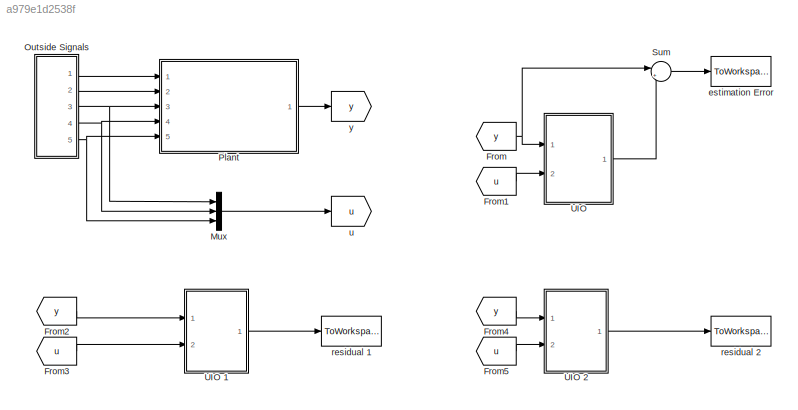
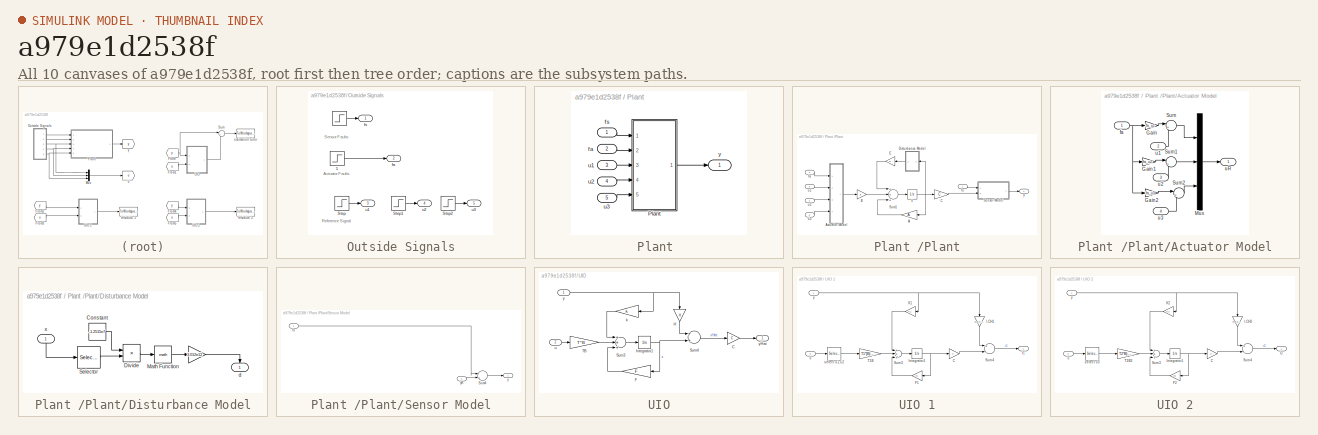
[diagram: thumbnail index - all 10 canvases of the model, root first then tree order]
MODEL slx_a979e1d2538f
KIND model
BLOCK [From] From
  GotoTag = y
BLOCK [From] From1
  GotoTag = u
BLOCK [From] From2
  GotoTag = y
BLOCK [From] From3
  GotoTag = u
BLOCK [From] From4
  GotoTag = y
BLOCK [From] From5
  GotoTag = u
BLOCK [Mux] Mux
  DisplayOption = bar
  Inputs = 3
  Ports = [3, 1]
BLOCK [SubSystem] Outside Signals
  Ports = [0, 5]
  RequestExecContextInheritance = off
BLOCK [Step] Outside Signals/  
  After = fsVal
  SampleTime = 0
  Time = fsTime
BLOCK [Step] Outside Signals/  1
  After = faVal
  SampleTime = 0
  Time = faTime
BLOCK [Step] Outside Signals/Step
  After = u1Val
  SampleTime = 0
  Time = 0
BLOCK [Step] Outside Signals/Step1
  After = u2Val
  SampleTime = 0
  Time = 0
BLOCK [Step] Outside Signals/Step2
  After = u3Val
  SampleTime = 0
  Time = 0
BLOCK [Outport] Outside Signals/fa
  IconDisplay = Port number
  Port = 2
BLOCK [Outport] Outside Signals/fs
  IconDisplay = Port number
BLOCK [Outport] Outside Signals/u1 
  IconDisplay = Port number
  Port = 3
BLOCK [Outport] Outside Signals/u2
  IconDisplay = Port number
  Port = 4
BLOCK [Outport] Outside Signals/u3
  IconDisplay = Port number
  Port = 5
BLOCK [SubSystem] Plant 
  Ports = [5, 1]
  RequestExecContextInheritance = off
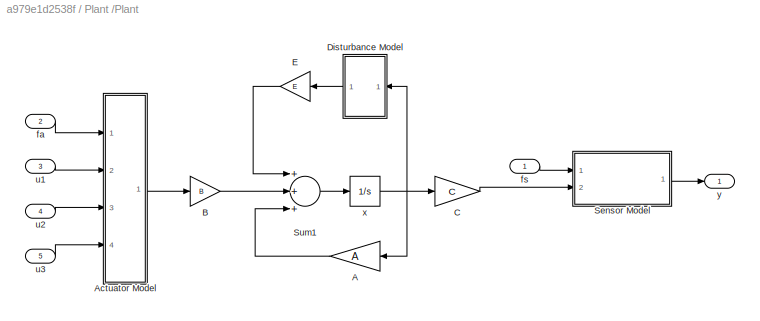
BLOCK [SubSystem] Plant /Plant
  Ports = [5, 1]
  RequestExecContextInheritance = off
BLOCK [Gain] Plant /Plant/A
  Gain = A
  Multiplication = Matrix(K*u)
  OutDataTypeStr = Inherit: Inherit via internal rule
  ParamDataTypeStr = Inherit: Inherit via internal rule
  SaturateOnIntegerOverflow = off
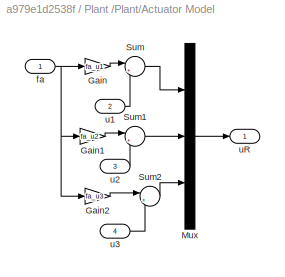
BLOCK [SubSystem] Plant /Plant/Actuator Model
  Ports = [4, 1]
  RequestExecContextInheritance = off
BLOCK [Gain] Plant /Plant/Actuator Model/Gain
  Gain = fa_u1
  OutDataTypeStr = Inherit: Inherit via internal rule
  ParamDataTypeStr = Inherit: Inherit via internal rule
  SaturateOnIntegerOverflow = off
BLOCK [Gain] Plant /Plant/Actuator Model/Gain1
  Gain = fa_u2
  OutDataTypeStr = Inherit: Inherit via internal rule
  ParamDataTypeStr = Inherit: Inherit via internal rule
  SaturateOnIntegerOverflow = off
BLOCK [Gain] Plant /Plant/Actuator Model/Gain2
  Gain = fa_u3
  OutDataTypeStr = Inherit: Inherit via internal rule
  ParamDataTypeStr = Inherit: Inherit via internal rule
  SaturateOnIntegerOverflow = off
BLOCK [Mux] Plant /Plant/Actuator Model/Mux
  DisplayOption = bar
  Inputs = 3
  Ports = [3, 1]
BLOCK [Sum] Plant /Plant/Actuator Model/Sum
  IconShape = round
  InputSameDT = off
  Inputs = |++
  OutDataTypeStr = Inherit: Inherit via internal rule
  Ports = [2, 1]
  SaturateOnIntegerOverflow = off
BLOCK [Sum] Plant /Plant/Actuator Model/Sum1
  IconShape = round
  InputSameDT = off
  Inputs = |++
  OutDataTypeStr = Inherit: Inherit via internal rule
  Ports = [2, 1]
  SaturateOnIntegerOverflow = off
BLOCK [Sum] Plant /Plant/Actuator Model/Sum2
  IconShape = round
  InputSameDT = off
  Inputs = |++
  OutDataTypeStr = Inherit: Inherit via internal rule
  Ports = [2, 1]
  SaturateOnIntegerOverflow = off
BLOCK [Inport] Plant /Plant/Actuator Model/fa
  IconDisplay = Port number
BLOCK [Inport] Plant /Plant/Actuator Model/u1
  IconDisplay = Port number
  Port = 2
BLOCK [Inport] Plant /Plant/Actuator Model/u2
  IconDisplay = Port number
  Port = 3
BLOCK [Inport] Plant /Plant/Actuator Model/u3
  IconDisplay = Port number
  Port = 4
BLOCK [Outport] Plant /Plant/Actuator Model/uR
  IconDisplay = Port number
BLOCK [Gain] Plant /Plant/B
  Gain = B
  Multiplication = Matrix(K*u) (u vector)
  OutDataTypeStr = Inherit: Inherit via internal rule
  ParamDataTypeStr = Inherit: Inherit via internal rule
  SaturateOnIntegerOverflow = off
BLOCK [Gain] Plant /Plant/C
  Gain = C
  Multiplication = Matrix(K*u)
  OutDataTypeStr = Inherit: Inherit via internal rule
  ParamDataTypeStr = Inherit: Inherit via internal rule
  SaturateOnIntegerOverflow = off
BLOCK [SubSystem] Plant /Plant/Disturbance Model
  Ports = [1, 1]
  RequestExecContextInheritance = off
BLOCK [Gain] Plant /Plant/Disturbance Model/  
  Gain = 3.012e12
  Multiplication = Matrix(K*u)
  OutDataTypeStr = Inherit: Inherit via internal rule
  ParamDataTypeStr = Inherit: Inherit via internal rule
  SaturateOnIntegerOverflow = off
BLOCK [Constant] Plant /Plant/Disturbance Model/Constant
  Value = -1.2515e7
BLOCK [Product] Plant /Plant/Disturbance Model/Divide
  InputSameDT = off
  Inputs = */
  OutDataTypeStr = Inherit: Inherit via internal rule
  Ports = [2, 1]
  RndMeth = Floor
  SaturateOnIntegerOverflow = off
BLOCK [Math] Plant /Plant/Disturbance Model/Math Function
  Ports = [1, 1]
BLOCK [Selector] Plant /Plant/Disturbance Model/Selector
  Indices = 2
  InputPortWidth = 4
  Ports = [1, 1]
BLOCK [Outport] Plant /Plant/Disturbance Model/d
  IconDisplay = Port number
BLOCK [Inport] Plant /Plant/Disturbance Model/x
  IconDisplay = Port number
BLOCK [Gain] Plant /Plant/E
  Gain = E
  Multiplication = Matrix(K*u)
  OutDataTypeStr = Inherit: Inherit via internal rule
  ParamDataTypeStr = Inherit: Inherit via internal rule
  SaturateOnIntegerOverflow = off
BLOCK [SubSystem] Plant /Plant/Sensor Model
  Ports = [2, 1]
  RequestExecContextInheritance = off
BLOCK [Sum] Plant /Plant/Sensor Model/Sum4
  InputSameDT = off
  Inputs = |++
  OutDataTypeStr = Inherit: Inherit via internal rule
  Ports = [2, 1]
  SaturateOnIntegerOverflow = off
BLOCK [Inport] Plant /Plant/Sensor Model/fs
  IconDisplay = Port number
BLOCK [Outport] Plant /Plant/Sensor Model/y
  IconDisplay = Port number
BLOCK [Inport] Plant /Plant/Sensor Model/yR
  IconDisplay = Port number
  Port = 2
BLOCK [Sum] Plant /Plant/Sum1
  InputSameDT = off
  Inputs = +++
  OutDataTypeStr = Inherit: Inherit via internal rule
  Ports = [3, 1]
  SaturateOnIntegerOverflow = off
BLOCK [Inport] Plant /Plant/fa
  IconDisplay = Port number
  Port = 2
BLOCK [Inport] Plant /Plant/fs
  IconDisplay = Port number
BLOCK [Inport] Plant /Plant/u1
  IconDisplay = Port number
  Port = 3
BLOCK [Inport] Plant /Plant/u2
  IconDisplay = Port number
  Port = 4
BLOCK [Inport] Plant /Plant/u3
  IconDisplay = Port number
  Port = 5
BLOCK [Integrator] Plant /Plant/x
  InitialCondition = [x1_0;x2_0;x3_0;x4_0]
  Ports = [1, 1]
BLOCK [Outport] Plant /Plant/y
  IconDisplay = Port number
BLOCK [Inport] Plant /fa
  IconDisplay = Port number
  Port = 2
BLOCK [Inport] Plant /fs
  IconDisplay = Port number
BLOCK [Inport] Plant /u1
  IconDisplay = Port number
  Port = 3
BLOCK [Inport] Plant /u2
  IconDisplay = Port number
  Port = 4
BLOCK [Inport] Plant /u3
  IconDisplay = Port number
  Port = 5
BLOCK [Outport] Plant /y
  IconDisplay = Port number
BLOCK [Sum] Sum
  IconShape = round
  InputSameDT = off
  Inputs = |+-
  OutDataTypeStr = Inherit: Inherit via internal rule
  Ports = [2, 1]
  SaturateOnIntegerOverflow = off
BLOCK [SubSystem] UIO
  Ports = [2, 1]
  RequestExecContextInheritance = off
BLOCK [SubSystem] UIO 1
  Ports = [2, 1]
  RequestExecContextInheritance = off
BLOCK [Gain] UIO 1/C
  Gain = C
  Multiplication = Matrix(K*u)
  OutDataTypeStr = Inherit: Inherit via internal rule
  ParamDataTypeStr = Inherit: Inherit via internal rule
  SaturateOnIntegerOverflow = off
BLOCK [Gain] UIO 1/F1
  Gain = F1
  Multiplication = Matrix(K*u)
  OutDataTypeStr = Inherit: Inherit via internal rule
  ParamDataTypeStr = Inherit: Inherit via internal rule
  SaturateOnIntegerOverflow = off
BLOCK [Gain] UIO 1/I-CH1
  Gain = eye(4)-C*H1
  Multiplication = Matrix(K*u)
  OutDataTypeStr = Inherit: Inherit via internal rule
  ParamDataTypeStr = Inherit: Inherit via internal rule
  SaturateOnIntegerOverflow = off
BLOCK [Integrator] UIO 1/Integrator1
  Ports = [1, 1]
BLOCK [Gain] UIO 1/K1
  Gain = K1
  Multiplication = Matrix(K*u)
  OutDataTypeStr = Inherit: Inherit via internal rule
  ParamDataTypeStr = Inherit: Inherit via internal rule
  SaturateOnIntegerOverflow = off
BLOCK [Sum] UIO 1/Sum3
  InputSameDT = off
  Inputs = +++
  OutDataTypeStr = Inherit: Inherit via internal rule
  Ports = [3, 1]
  SaturateOnIntegerOverflow = off
BLOCK [Sum] UIO 1/Sum4
  InputSameDT = off
  Inputs = +-
  OutDataTypeStr = Inherit: Inherit via internal rule
  Ports = [2, 1]
  SaturateOnIntegerOverflow = off
BLOCK [Gain] UIO 1/T1B
  Gain = T1*[B(:,1) B(:,2)]
  Multiplication = Matrix(K*u)
  OutDataTypeStr = Inherit: Inherit via internal rule
  ParamDataTypeStr = Inherit: Inherit via internal rule
  SaturateOnIntegerOverflow = off
BLOCK [Outport] UIO 1/r1
  IconDisplay = Port number
BLOCK [Selector] UIO 1/select u1,u2
  Indices = [1 2]
  InputPortWidth = 3
  Ports = [1, 1]
BLOCK [Inport] UIO 1/u
  IconDisplay = Port number
  Port = 2
BLOCK [Inport] UIO 1/y
  IconDisplay = Port number
BLOCK [SubSystem] UIO 2
  Ports = [2, 1]
  RequestExecContextInheritance = off
BLOCK [Gain] UIO 2/C
  Gain = C
  Multiplication = Matrix(K*u)
  OutDataTypeStr = Inherit: Inherit via internal rule
  ParamDataTypeStr = Inherit: Inherit via internal rule
  SaturateOnIntegerOverflow = off
BLOCK [Gain] UIO 2/F2
  Gain = F2
  Multiplication = Matrix(K*u)
  OutDataTypeStr = Inherit: Inherit via internal rule
  ParamDataTypeStr = Inherit: Inherit via internal rule
  SaturateOnIntegerOverflow = off
BLOCK [Gain] UIO 2/I-CH2
  Gain = eye(4)-C*H2
  Multiplication = Matrix(K*u)
  OutDataTypeStr = Inherit: Inherit via internal rule
  ParamDataTypeStr = Inherit: Inherit via internal rule
  SaturateOnIntegerOverflow = off
BLOCK [Integrator] UIO 2/Integrator1
  Ports = [1, 1]
BLOCK [Gain] UIO 2/K2
  Gain = K2
  Multiplication = Matrix(K*u)
  OutDataTypeStr = Inherit: Inherit via internal rule
  ParamDataTypeStr = Inherit: Inherit via internal rule
  SaturateOnIntegerOverflow = off
BLOCK [Sum] UIO 2/Sum3
  InputSameDT = off
  Inputs = +++
  OutDataTypeStr = Inherit: Inherit via internal rule
  Ports = [3, 1]
  SaturateOnIntegerOverflow = off
BLOCK [Sum] UIO 2/Sum4
  InputSameDT = off
  Inputs = +-
  OutDataTypeStr = Inherit: Inherit via internal rule
  Ports = [2, 1]
  SaturateOnIntegerOverflow = off
BLOCK [Gain] UIO 2/T2B3
  Gain = T2*B(:,3)
  Multiplication = Matrix(K*u)
  OutDataTypeStr = Inherit: Inherit via internal rule
  ParamDataTypeStr = Inherit: Inherit via internal rule
  SaturateOnIntegerOverflow = off
BLOCK [Outport] UIO 2/r2
  IconDisplay = Port number
BLOCK [Selector] UIO 2/select u3
  Indices = 3
  InputPortWidth = 3
  Ports = [1, 1]
BLOCK [Inport] UIO 2/u
  IconDisplay = Port number
  Port = 2
BLOCK [Inport] UIO 2/y
  IconDisplay = Port number
BLOCK [Gain] UIO/C
  Gain = C
  Multiplication = Matrix(K*u)
  OutDataTypeStr = Inherit: Inherit via internal rule
  ParamDataTypeStr = Inherit: Inherit via internal rule
  SaturateOnIntegerOverflow = off
BLOCK [Gain] UIO/F
  Gain = F
  Multiplication = Matrix(K*u)
  OutDataTypeStr = Inherit: Inherit via internal rule
  ParamDataTypeStr = Inherit: Inherit via internal rule
  SaturateOnIntegerOverflow = off
BLOCK [Gain] UIO/H
  Gain = H
  Multiplication = Matrix(K*u)
  OutDataTypeStr = Inherit: Inherit via internal rule
  ParamDataTypeStr = Inherit: Inherit via internal rule
  SaturateOnIntegerOverflow = off
BLOCK [Integrator] UIO/Integrator1
  Ports = [1, 1]
BLOCK [Sum] UIO/Sum3
  InputSameDT = off
  Inputs = +++
  OutDataTypeStr = Inherit: Inherit via internal rule
  Ports = [3, 1]
  SaturateOnIntegerOverflow = off
BLOCK [Sum] UIO/Sum4
  InputSameDT = off
  OutDataTypeStr = Inherit: Inherit via internal rule
  Ports = [2, 1]
  SaturateOnIntegerOverflow = off
BLOCK [Gain] UIO/TB
  Gain = T*B
  Multiplication = Matrix(K*u)
  OutDataTypeStr = Inherit: Inherit via internal rule
  ParamDataTypeStr = Inherit: Inherit via internal rule
  SaturateOnIntegerOverflow = off
BLOCK [Gain] UIO/k
  Gain = k
  Multiplication = Matrix(K*u)
  OutDataTypeStr = Inherit: Inherit via internal rule
  ParamDataTypeStr = Inherit: Inherit via internal rule
  SaturateOnIntegerOverflow = off
BLOCK [Inport] UIO/u
  IconDisplay = Port number
  Port = 2
BLOCK [Inport] UIO/y
  IconDisplay = Port number
BLOCK [Outport] UIO/yHat 
  IconDisplay = Port number
BLOCK [ToWorkspace] estimation Error
  FixptAsFi = on
  MaxDataPoints = inf
  Ports = [1]
  SampleTime = -1
  Save2DSignal = 3-D array (concatenate along third dimension)
  VariableName = estErrUIO
BLOCK [ToWorkspace] residual 1
  FixptAsFi = on
  MaxDataPoints = inf
  Ports = [1]
  SampleTime = -1
  Save2DSignal = 3-D array (concatenate along third dimension)
  VariableName = r1
BLOCK [ToWorkspace] residual 2
  FixptAsFi = on
  MaxDataPoints = inf
  Ports = [1]
  SampleTime = -1
  Save2DSignal = 3-D array (concatenate along third dimension)
  VariableName = r2
BLOCK [Goto] u
  GotoTag = u
BLOCK [Goto] y
  GotoTag = y
ANNOTATION Outside Signals: Actuator Faults
ANNOTATION Outside Signals: Reference Signal
ANNOTATION Outside Signals: Sensor Faults
LINE From1:1 -> UIO:2
LINE From2:1 -> UIO 1:1
LINE From3:1 -> UIO 1:2
LINE From4:1 -> UIO 2:1
LINE From5:1 -> UIO 2:2
NET From:1 -> Sum:1, UIO:1
LINE Mux:1 -> u:1
LINE Outside Signals/  1:1 -> Outside Signals/fa:1
LINE Outside Signals/  :1 -> Outside Signals/fs:1
LINE Outside Signals/Step1:1 -> Outside Signals/u2:1
LINE Outside Signals/Step2:1 -> Outside Signals/u3:1
LINE Outside Signals/Step:1 -> Outside Signals/u1 :1
LINE Outside Signals:1 -> Plant :1
LINE Outside Signals:2 -> Plant :2
NET Outside Signals:3 -> Mux:1, Plant :3
NET Outside Signals:4 -> Mux:2, Plant :4
NET Outside Signals:5 -> Mux:3, Plant :5
LINE Plant /Plant/A:1 -> Plant /Plant/Sum1:3
LINE Plant /Plant/Actuator Model/Gain1:1 -> Plant /Plant/Actuator Model/Sum1:1
LINE Plant /Plant/Actuator Model/Gain2:1 -> Plant /Plant/Actuator Model/Sum2:1
LINE Plant /Plant/Actuator Model/Gain:1 -> Plant /Plant/Actuator Model/Sum:1
LINE Plant /Plant/Actuator Model/Mux:1 -> Plant /Plant/Actuator Model/uR:1
LINE Plant /Plant/Actuator Model/Sum1:1 -> Plant /Plant/Actuator Model/Mux:2
LINE Plant /Plant/Actuator Model/Sum2:1 -> Plant /Plant/Actuator Model/Mux:3
LINE Plant /Plant/Actuator Model/Sum:1 -> Plant /Plant/Actuator Model/Mux:1
NET Plant /Plant/Actuator Model/fa:1 -> Plant /Plant/Actuator Model/Gain1:1, Plant /Plant/Actuator Model/Gain2:1, Plant /Plant/Actuator Model/Gain:1
LINE Plant /Plant/Actuator Model/u1:1 -> Plant /Plant/Actuator Model/Sum:2
LINE Plant /Plant/Actuator Model/u2:1 -> Plant /Plant/Actuator Model/Sum1:2
LINE Plant /Plant/Actuator Model/u3:1 -> Plant /Plant/Actuator Model/Sum2:2
LINE Plant /Plant/Actuator Model:1 -> Plant /Plant/B:1
LINE Plant /Plant/B:1 -> Plant /Plant/Sum1:2
LINE Plant /Plant/C:1 -> Plant /Plant/Sensor Model:2
LINE Plant /Plant/Disturbance Model/  :1 -> Plant /Plant/Disturbance Model/d:1
LINE Plant /Plant/Disturbance Model/Constant:1 -> Plant /Plant/Disturbance Model/Divide:1
LINE Plant /Plant/Disturbance Model/Divide:1 -> Plant /Plant/Disturbance Model/Math Function:1
LINE Plant /Plant/Disturbance Model/Math Function:1 -> Plant /Plant/Disturbance Model/  :1
LINE Plant /Plant/Disturbance Model/Selector:1 -> Plant /Plant/Disturbance Model/Divide:2
LINE Plant /Plant/Disturbance Model/x:1 -> Plant /Plant/Disturbance Model/Selector:1
LINE Plant /Plant/Disturbance Model:1 -> Plant /Plant/E:1
LINE Plant /Plant/E:1 -> Plant /Plant/Sum1:1
LINE Plant /Plant/Sensor Model/Sum4:1 -> Plant /Plant/Sensor Model/y:1
LINE Plant /Plant/Sensor Model/fs:1 -> Plant /Plant/Sensor Model/Sum4:1
LINE Plant /Plant/Sensor Model/yR:1 -> Plant /Plant/Sensor Model/Sum4:2
LINE Plant /Plant/Sensor Model:1 -> Plant /Plant/y:1
LINE Plant /Plant/Sum1:1 -> Plant /Plant/x:1
LINE Plant /Plant/fa:1 -> Plant /Plant/Actuator Model:1
LINE Plant /Plant/fs:1 -> Plant /Plant/Sensor Model:1
LINE Plant /Plant/u1:1 -> Plant /Plant/Actuator Model:2
LINE Plant /Plant/u2:1 -> Plant /Plant/Actuator Model:3
LINE Plant /Plant/u3:1 -> Plant /Plant/Actuator Model:4
NET Plant /Plant/x:1 -> Plant /Plant/A:1, Plant /Plant/C:1, Plant /Plant/Disturbance Model:1
LINE Plant /Plant:1 -> Plant /y:1
LINE Plant /fa:1 -> Plant /Plant:2
LINE Plant /fs:1 -> Plant /Plant:1
LINE Plant /u1:1 -> Plant /Plant:3
LINE Plant /u2:1 -> Plant /Plant:4
LINE Plant /u3:1 -> Plant /Plant:5
LINE Plant :1 -> y:1
LINE Sum:1 -> estimation Error:1
LINE UIO 1/C:1 -> UIO 1/Sum4:2
LINE UIO 1/F1:1 -> UIO 1/Sum3:3
LINE UIO 1/I-CH1:1 -> UIO 1/Sum4:1
NET UIO 1/Integrator1:1 -> UIO 1/C:1, UIO 1/F1:1
LINE UIO 1/K1:1 -> UIO 1/Sum3:1
LINE UIO 1/Sum3:1 -> UIO 1/Integrator1:1
LINE UIO 1/Sum4:1 -> UIO 1/r1:1
LINE UIO 1/T1B:1 -> UIO 1/Sum3:2
LINE UIO 1/select u1,u2:1 -> UIO 1/T1B:1
LINE UIO 1/u:1 -> UIO 1/select u1,u2:1
NET UIO 1/y:1 -> UIO 1/I-CH1:1, UIO 1/K1:1
LINE UIO 1:1 -> residual 1:1
LINE UIO 2/C:1 -> UIO 2/Sum4:2
LINE UIO 2/F2:1 -> UIO 2/Sum3:3
LINE UIO 2/I-CH2:1 -> UIO 2/Sum4:1
NET UIO 2/Integrator1:1 -> UIO 2/C:1, UIO 2/F2:1
LINE UIO 2/K2:1 -> UIO 2/Sum3:1
LINE UIO 2/Sum3:1 -> UIO 2/Integrator1:1
LINE UIO 2/Sum4:1 -> UIO 2/r2:1
LINE UIO 2/T2B3:1 -> UIO 2/Sum3:2
LINE UIO 2/select u3:1 -> UIO 2/T2B3:1
LINE UIO 2/u:1 -> UIO 2/select u3:1
NET UIO 2/y:1 -> UIO 2/I-CH2:1, UIO 2/K2:1
LINE UIO 2:1 -> residual 2:1
LINE UIO/C:1 -> UIO/yHat :1
LINE UIO/F:1 -> UIO/Sum3:3
LINE UIO/H:1 -> UIO/Sum4:1
NET UIO/Integrator1:1 -> UIO/F:1, UIO/Sum4:2
LINE UIO/Sum3:1 -> UIO/Integrator1:1
LINE UIO/Sum4:1 -> UIO/C:1
LINE UIO/TB:1 -> UIO/Sum3:2
LINE UIO/k:1 -> UIO/Sum3:1
LINE UIO/u:1 -> UIO/TB:1
NET UIO/y:1 -> UIO/H:1, UIO/k:1
LINE UIO:1 -> Sum:2
note: NET lines group one-source signal fan-out (src -> all destinations, sorted); 1:1 wires keep LINE
